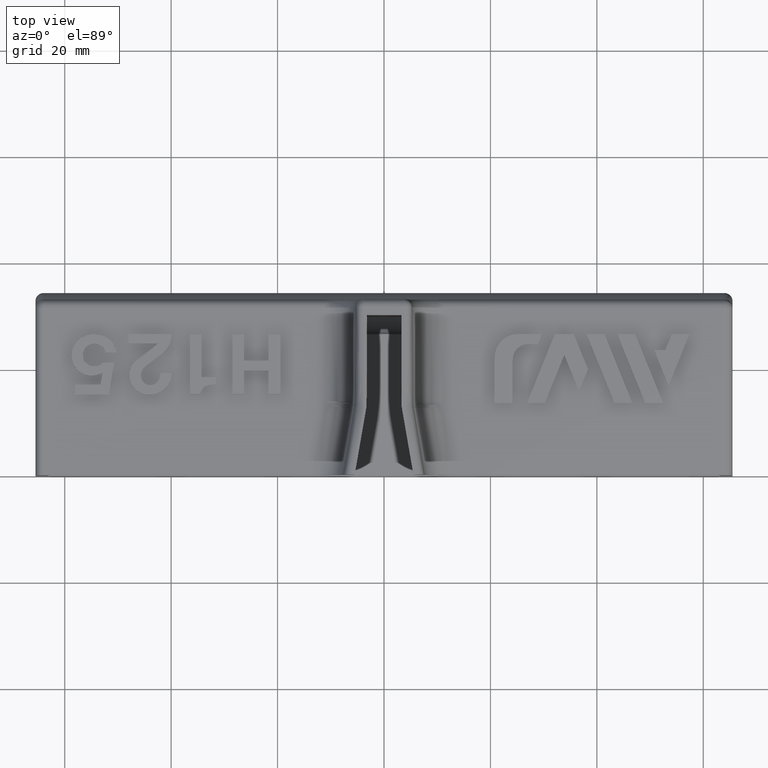
[diagram: clean part render]
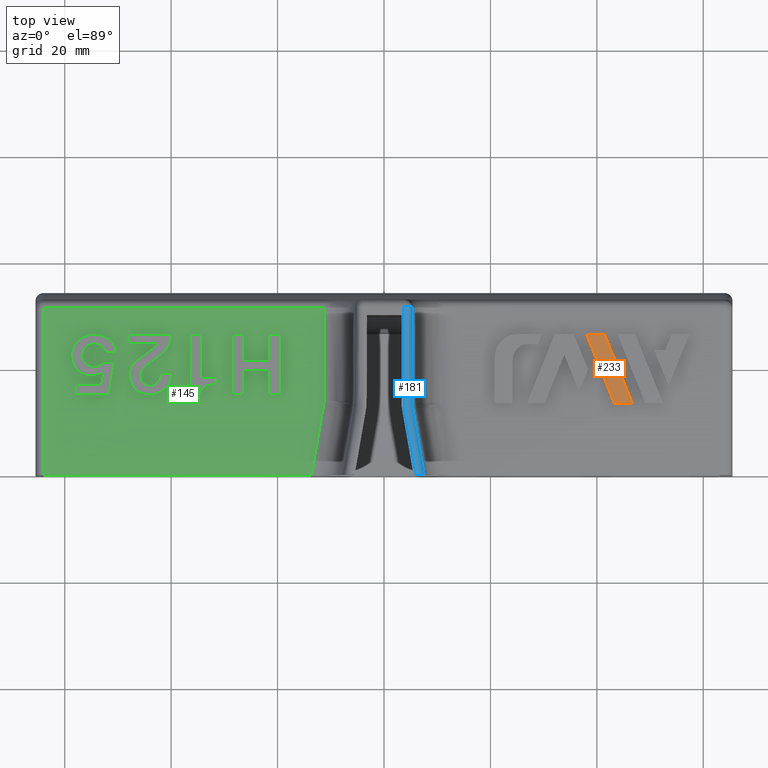
[diagram: same view with three faces highlighted in distinct colors, each labeled with its STEP entity id]
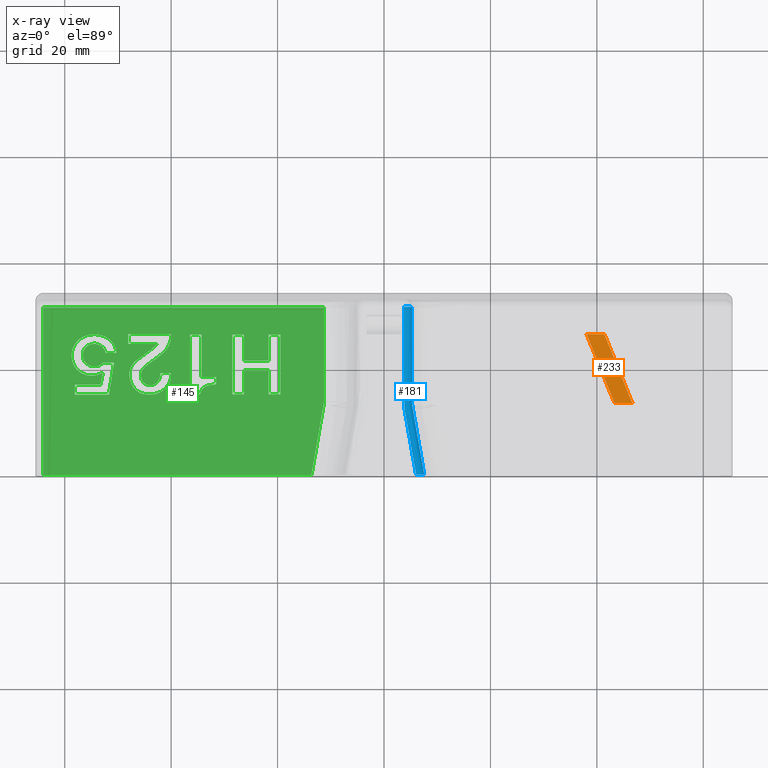
[diagram: x-ray of the same camera — body ghosted, the three highlighted faces saturated]
A machine part, top view with three faces highlighted in distinct colors.
The next image is the same camera in x-ray (body ghosted, the three faces saturated) — at least one of them is partly hidden behind the body in this view.
Their STEP definitions:

[orange] entity #233 — the highlighted planar face has unit normal (-0, 0, -1).
#233=ADVANCED_FACE('',(#494),#495,.F.);
#494=FACE_OUTER_BOUND('',#1603,.T.);
#495=PLANE('',#1604);
#1603=EDGE_LOOP('',(#2777,#2778,#2779,#2780));
#1604=AXIS2_PLACEMENT_3D('',#2781,#2782,#2783);
#2777=ORIENTED_EDGE('',*,*,#3166,.F.);
#2778=ORIENTED_EDGE('',*,*,#3175,.F.);
#2779=ORIENTED_EDGE('',*,*,#3172,.F.);
#2780=ORIENTED_EDGE('',*,*,#3169,.F.);
#2781=CARTESIAN_POINT('',(20.7878206641582,13.4986448545981,7.0005));
#2782=DIRECTION('',(-1.68724714822356E-31,1.71410341203709E-16,-1.0));
#2783=DIRECTION('',(-1.0,3.05640636956162E-16,2.21114680688731E-31));
#3166=EDGE_CURVE('',#3665,#3667,#3668,.T.);
#3169=EDGE_CURVE('',#3667,#3672,#3673,.T.);
#3172=EDGE_CURVE('',#3672,#3677,#3678,.T.);
#3175=EDGE_CURVE('',#3677,#3665,#3681,.T.);
#3665=VERTEX_POINT('',#5052);
#3667=VERTEX_POINT('',#5055);
#3668=LINE('',#5056,#5057);
#3672=VERTEX_POINT('',#5063);
#3673=LINE('',#5064,#5065);
#3677=VERTEX_POINT('',#5071);
#3678=LINE('',#5072,#5073);
#3681=LINE('',#5078,#5079);
#5052=CARTESIAN_POINT('',(41.4240970111796,26.4941301454018,7.0005));
#5055=CARTESIAN_POINT('',(46.6751758170018,13.4986448545981,7.0005));
#5056=CARTESIAN_POINT('',(41.4240970111796,26.4941301454018,7.0005));
#5057=VECTOR('',#5425,1000.0);
#5063=CARTESIAN_POINT('',(43.3170544880509,13.4986448545981,7.0005));
#5064=CARTESIAN_POINT('',(46.6751758170018,13.4986448545981,7.0005));
#5065=VECTOR('',#5428,1000.0);
#5071=CARTESIAN_POINT('',(38.0659756822287,26.4941301454018,7.0005));
#5072=CARTESIAN_POINT('',(43.3170544880509,13.4986448545981,7.0005));
#5073=VECTOR('',#5431,1000.0);
#5078=CARTESIAN_POINT('',(38.0659756822287,26.4941301454018,7.0005));
#5079=VECTOR('',#5434,1000.0);
#5425=DIRECTION('',(0.37464105840902,-0.927169929060563,-1.58926513894091E-16));
#5428=DIRECTION('',(-1.0,4.66969920222005E-16,1.68621565400355E-31));
#5431=DIRECTION('',(-0.374641058409019,0.927169929060563,1.58926513894091E-16));
#5434=DIRECTION('',(1.0,-4.66969920222005E-16,-1.68621565400355E-31));

[blue] entity #181 — the highlighted face is a freeform B-spline surface patch.
#181=ADVANCED_FACE('',(#387),#388,.T.);
#387=FACE_OUTER_BOUND('',#1171,.T.);
#388=(B_SPLINE_SURFACE(3,2,((#1173,#1174,#1175),(#1176,#1177,#1178),(#1179,#1180,#1181),(#1182,#1183,#1184),(#1185,#1186,#1187),(#1188,#1189,#1190),(#1191,#1192,#1193),(#1194,#1195,#1196),(#1197,#1198,#1199),(#1200,#1201,#1202),(#1203,#1204,#1205),(#1206,#1207,#1208),(#1209,#1210,#1211),(#1212,#1213,#1214),(#1215,#1216,#1217),(#1218,#1219,#1220),(#1221,#1222,#1223)),.UNSPECIFIED.,.F.,.F.,.F.)B_SPLINE_SURFACE_WITH_KNOTS((4,1,2,2,2,2,2,2,4),(3,3),(0.00879608113040688,0.0211577502210504,0.0212205431490077,0.0212833360769649,0.021785679500623,0.0227903663479393,0.0232299168436401,0.0232927097715974,0.0408747295996313),(0.0,1.0),.UNSPECIFIED.)RATIONAL_B_SPLINE_SURFACE(((1.0,0.707106781186547,1.0),(1.0,0.707106781186548,1.0),(1.0,0.707106781186606,1.0),(1.0,0.707106781186545,1.0),(1.0,0.707106781186545,1.0),(1.0,0.707106781186544,1.0),(1.0,0.707106781186544,1.0),(1.0,0.707106781186547,1.0),(1.0,0.707106781186547,1.0),(1.0,0.707106781186547,1.0),(1.0,0.707106781186547,1.0),(1.0,0.707106781186547,1.0),(1.0,0.707106781186548,1.0),(1.0,0.707106781186548,1.0),(1.0,0.707106781186547,1.0),(1.0,0.707106781186546,1.0),(1.0,0.707106781186546,1.0)))BOUNDED_SURFACE()REPRESENTATION_ITEM('')GEOMETRIC_REPRESENTATION_ITEM()SURFACE());
#1171=EDGE_LOOP('',(#2378,#2379,#2380,#2381));
#1173=CARTESIAN_POINT('',(7.56316124284262,-0.118589302377658,12.9999999999998));
#1174=CARTESIAN_POINT('',(7.56316124284251,-0.118589302377882,14.4999999999998));
#1175=CARTESIAN_POINT('',(6.08594961332428,-0.379061568878437,14.5));
#1176=CARTESIAN_POINT('',(6.84763413933632,3.93936655118135,12.9999999999858));
#1177=CARTESIAN_POINT('',(6.84763413932925,3.93936655116827,14.4999999999858));
#1178=CARTESIAN_POINT('',(5.37042250981624,3.67889428465863,14.5));
#1179=CARTESIAN_POINT('',(6.12847240999903,8.01793539213535,12.9999999999984));
#1180=CARTESIAN_POINT('',(6.12847240999735,8.01793539213566,14.4999999999983));
#1181=CARTESIAN_POINT('',(4.65126078048038,7.7574631256364,14.5));
#1182=CARTESIAN_POINT('',(5.40931068065736,12.096504233117,13.0));
#1183=CARTESIAN_POINT('',(5.40931068065738,12.096504233117,14.5));
#1184=CARTESIAN_POINT('',(3.93209905113905,11.8360319666166,14.5));
#1185=CARTESIAN_POINT('',(5.40204142898394,12.1377302079747,13.0));
#1186=CARTESIAN_POINT('',(5.40204142898394,12.1377302079747,14.5));
#1187=CARTESIAN_POINT('',(3.92482979946562,11.8772579414743,14.5));
#1188=CARTESIAN_POINT('',(5.39886437404737,12.1557420437247,13.0));
#1189=CARTESIAN_POINT('',(5.39886437404742,12.1557420437262,14.5));
#1190=CARTESIAN_POINT('',(3.92119395802114,11.8978707652702,14.5));
#1191=CARTESIAN_POINT('',(5.37099778403441,12.3171593063829,13.0));
#1192=CARTESIAN_POINT('',(5.3709977840341,12.3171593063708,14.5));
#1193=CARTESIAN_POINT('',(3.88914701587387,12.0835027236439,14.5));
#1194=CARTESIAN_POINT('',(5.34936018693053,12.4611969728094,13.0000000000006));
#1195=CARTESIAN_POINT('',(5.34936018694096,12.4611969728109,14.5000000000003));
#1196=CARTESIAN_POINT('',(3.86426436875966,12.2491423113834,14.5));
#1197=CARTESIAN_POINT('',(5.29393419033218,12.8943280620446,12.9999999999988));
#1198=CARTESIAN_POINT('',(5.29393419031134,12.8943280620416,14.4999999999994));
#1199=CARTESIAN_POINT('',(3.80052375612271,12.7472486632197,14.5));
#1200=CARTESIAN_POINT('',(5.26959773572732,13.1846924747639,12.9999999999997));
#1201=CARTESIAN_POINT('',(5.26959773570992,13.1846924747615,14.4999999999997));
#1202=CARTESIAN_POINT('',(3.77253751590679,13.0811603171372,14.5));
#1203=CARTESIAN_POINT('',(5.25288637629543,13.602952538197,13.0000000000001));
#1204=CARTESIAN_POINT('',(5.25288637630304,13.6029525381981,14.5000000000001));
#1205=CARTESIAN_POINT('',(3.75331923994191,13.5621647122355,14.5));
#1206=CARTESIAN_POINT('',(5.25023292249508,13.730354658492,12.9999999999996));
#1207=CARTESIAN_POINT('',(5.25023292249331,13.7303546584977,14.4999999999999));
#1208=CARTESIAN_POINT('',(3.75026786518251,13.708672154146,14.5));
#1209=CARTESIAN_POINT('',(5.24998349225646,13.8759588981508,13.0000000000001));
#1210=CARTESIAN_POINT('',(5.24998349225672,13.87595889815,14.5));
#1211=CARTESIAN_POINT('',(3.7499810158171,13.8761197118431,14.5));
#1212=CARTESIAN_POINT('',(5.25,13.8970507074756,13.0000000000001));
#1213=CARTESIAN_POINT('',(5.24999999999995,13.8970507074794,14.5));
#1214=CARTESIAN_POINT('',(3.74999999999999,13.8970507074807,14.5));
#1215=CARTESIAN_POINT('',(5.25,19.7786544544467,12.9999999999847));
#1216=CARTESIAN_POINT('',(5.25000000001525,19.7786544533793,14.4999999999899));
#1217=CARTESIAN_POINT('',(3.75000000000381,19.7786544530132,14.5));
#1218=CARTESIAN_POINT('',(5.25000000000003,25.6393272272107,13.0000000000051));
#1219=CARTESIAN_POINT('',(5.24999999993392,25.6393272272183,14.4999999999797));
#1220=CARTESIAN_POINT('',(3.74999999998221,25.639327227226,14.5));
#1221=CARTESIAN_POINT('',(5.25,31.5,13.0));
#1222=CARTESIAN_POINT('',(5.25000000000001,31.5,14.5));
#1223=CARTESIAN_POINT('',(3.75,31.5,14.5));
#2378=ORIENTED_EDGE('',*,*,#3075,.F.);
#2379=ORIENTED_EDGE('',*,*,#3015,.T.);
#2380=ORIENTED_EDGE('',*,*,#2958,.F.);
#2381=ORIENTED_EDGE('',*,*,#3076,.F.);
#2958=EDGE_CURVE('',#3347,#3348,#3349,.T.);
#3015=EDGE_CURVE('',#3373,#3348,#3451,.F.);
#3075=EDGE_CURVE('',#3373,#3533,#3534,.T.);
#3076=EDGE_CURVE('',#3533,#3347,#3535,.T.);
#3347=VERTEX_POINT('',#4101);
#3348=VERTEX_POINT('',#4102);
#3349=B_SPLINE_CURVE_WITH_KNOTS('',3,(#4103,#4104,#4105,#4106,#4107,#4108,#4109,#4110,#4111,#4112,#4113,#4114,#4115,#4116,#4117,#4118,#4119),.UNSPECIFIED.,.F.,.F.,(4,1,2,2,2,2,2,1,1,4),(0.0,0.00792231583258959,0.0118834737488844,0.0123786184884212,0.0128737632279581,0.0138640527070318,0.0143591974465686,0.0148543421861055,0.0158446316651792,0.0316892633303583),.UNSPECIFIED.);
#3373=VERTEX_POINT('',#4258);
#3451=CIRCLE('',#4487,1.5);
#3533=VERTEX_POINT('',#4810);
#3534=B_SPLINE_CURVE_WITH_KNOTS('',3,(#4811,#4812,#4813,#4814,#4815,#4816,#4817,#4818,#4819,#4820,#4821,#4822,#4823),.UNSPECIFIED.,.F.,.F.,(4,3,1,1,1,3,4),(0.0,0.00518421419875595,0.0108096352786937,0.0164350563586315,0.0220604774385694,0.0276858985185072,0.0316878832326826),.UNSPECIFIED.);
#3535=B_SPLINE_CURVE_WITH_KNOTS('',3,(#4824,#4825,#4826,#4827,#4828,#4829,#4830,#4831,#4832,#4833,#4834,#4835,#4836,#4837),.UNSPECIFIED.,.F.,.F.,(4,2,2,2,2,2,4),(0.0,0.000295168457652617,0.000590336915305234,0.000885505372957852,0.00118067383061047,0.00177101074591571,0.00236134766122094),.UNSPECIFIED.);
#4101=CARTESIAN_POINT('',(6.01911083138143,-6.93889390390723E-15,14.5));
#4102=CARTESIAN_POINT('',(3.75,31.5,14.5));
#4103=CARTESIAN_POINT('',(6.01911083138143,-6.93889390390723E-15,14.5));
#4104=CARTESIAN_POINT('',(5.56054559563775,2.60065268458186,14.5));
#4105=CARTESIAN_POINT('',(4.87269774202222,6.50163171145467,14.5));
#4106=CARTESIAN_POINT('',(4.1848498884067,10.4026107383274,14.5));
#4107=CARTESIAN_POINT('',(3.92690694330088,11.8654778734047,14.5));
#4108=CARTESIAN_POINT('',(3.89807618203087,12.0279990895719,14.5));
#4109=CARTESIAN_POINT('',(3.84980526029584,12.3541201574926,14.5));
#4110=CARTESIAN_POINT('',(3.82919114662232,12.5175851650829,14.5));
#4111=CARTESIAN_POINT('',(3.77789668957183,13.0091917528271,14.5));
#4112=CARTESIAN_POINT('',(3.7577505308533,13.3389509776113,14.5));
#4113=CARTESIAN_POINT('',(3.74888710162142,13.8341645615498,14.5));
#4114=CARTESIAN_POINT('',(3.75,13.9992831082187,14.5));
#4115=CARTESIAN_POINT('',(3.75,14.329485313724,14.5));
#4116=CARTESIAN_POINT('',(3.75,14.824788621982,14.5));
#4117=CARTESIAN_POINT('',(3.75,20.6033272183248,14.5));
#4118=CARTESIAN_POINT('',(3.75,26.216764711915,14.5));
#4119=CARTESIAN_POINT('',(3.75,31.5,14.5));
#4258=CARTESIAN_POINT('',(5.25,31.5,13.0));
#4487=AXIS2_PLACEMENT_3D('',#5235,#5236,#5237);
#4810=CARTESIAN_POINT('',(7.54225074921005,-1.04083408558608E-14,13.0));
#4811=CARTESIAN_POINT('',(5.25,31.5,13.0));
#4812=CARTESIAN_POINT('',(5.25,25.6249622117531,13.0));
#4813=CARTESIAN_POINT('',(5.25,19.7499244235061,13.0));
#4814=CARTESIAN_POINT('',(5.25,13.8748866352593,13.0));
#4815=CARTESIAN_POINT('',(5.25,13.7294425338559,13.0));
#4816=CARTESIAN_POINT('',(5.25634720316461,13.4385543310492,13.0));
#4817=CARTESIAN_POINT('',(5.2848914940124,13.0030526101796,13.0));
#4818=CARTESIAN_POINT('',(5.33240493528108,12.5692104749286,13.0));
#4819=CARTESIAN_POINT('',(5.37666636671682,12.2816393372819,13.0));
#4820=CARTESIAN_POINT('',(5.40192246987792,12.13840485859,13.0));
#4821=CARTESIAN_POINT('',(6.1153652296553,8.09226990572663,13.0));
#4822=CARTESIAN_POINT('',(6.82880798943268,4.04613495286331,13.0));
#4823=CARTESIAN_POINT('',(7.54225074921005,-1.25767452008319E-14,13.0));
#4824=CARTESIAN_POINT('',(7.54225074921005,-1.04083408558608E-14,13.0));
#4825=CARTESIAN_POINT('',(7.54225074921005,-1.04022289432836E-14,13.0998151072055));
#4826=CARTESIAN_POINT('',(7.53223497012553,3.96747707208249E-15,13.1979190371764));
#4827=CARTESIAN_POINT('',(7.49302433812296,3.98409261539632E-15,13.3908501880128));
#4828=CARTESIAN_POINT('',(7.46332582204162,3.99359913846888E-15,13.4867064595647));
#4829=CARTESIAN_POINT('',(7.38609203298865,4.0142149842287E-15,13.668921193031));
#4830=CARTESIAN_POINT('',(7.33887369676184,4.02528445181688E-15,13.7552626452724));
#4831=CARTESIAN_POINT('',(7.22742461437172,4.04892961248582E-15,13.9185192589214));
#4832=CARTESIAN_POINT('',(7.16280848481291,4.06155442772595E-15,13.9954658792802));
#4833=CARTESIAN_POINT('',(6.95152836551038,4.10008111231365E-15,14.2020941481618));
#4834=CARTESIAN_POINT('',(6.78180344348658,4.1276482759552E-15,14.3128502518332));
#4835=CARTESIAN_POINT('',(6.4170536854689,4.18138106070201E-15,14.4608737046118));
#4836=CARTESIAN_POINT('',(6.21865671729078,3.44500962890742E-15,14.5));
#4837=CARTESIAN_POINT('',(6.01911083138143,3.46944695195361E-15,14.5));
#5235=CARTESIAN_POINT('',(3.75,31.5,13.0));
#5236=DIRECTION('',(5.9524472320701E-17,1.0,6.18710768017223E-32));
#5237=DIRECTION('',(-1.0,5.9524472320701E-17,0.0));

[green] entity #145 — the highlighted planar face has unit normal (0, 0, 1).
#145=ADVANCED_FACE('',(#308,#309,#310,#311,#312),#313,.T.);
#308=FACE_OUTER_BOUND('',#851,.T.);
#309=FACE_BOUND('',#852,.T.);
#310=FACE_BOUND('',#853,.T.);
#311=FACE_BOUND('',#854,.T.);
#312=FACE_BOUND('',#855,.T.);
#313=PLANE('',#856);
#851=EDGE_LOOP('',(#1957,#1958,#1959,#1960,#1961));
#852=EDGE_LOOP('',(#1962,#1963,#1964,#1965,#1966,#1967,#1968,#1969,#1970,#1971,#1972,#1973));
#853=EDGE_LOOP('',(#1974,#1975,#1976,#1977,#1978,#1979,#1980));
#854=EDGE_LOOP('',(#1981,#1982,#1983,#1984,#1985,#1986));
#855=EDGE_LOOP('',(#1987,#1988,#1989,#1990,#1991,#1992,#1993,#1994,#1995,#1996));
#856=AXIS2_PLACEMENT_3D('',#1997,#1998,#1999);
#1957=ORIENTED_EDGE('',*,*,#2982,.T.);
#1958=ORIENTED_EDGE('',*,*,#2983,.T.);
#1959=ORIENTED_EDGE('',*,*,#2984,.T.);
#1960=ORIENTED_EDGE('',*,*,#2985,.T.);
#1961=ORIENTED_EDGE('',*,*,#2986,.F.);
#1962=ORIENTED_EDGE('',*,*,#2927,.T.);
#1963=ORIENTED_EDGE('',*,*,#2950,.T.);
#1964=ORIENTED_EDGE('',*,*,#2948,.T.);
#1965=ORIENTED_EDGE('',*,*,#2946,.T.);
#1966=ORIENTED_EDGE('',*,*,#2944,.T.);
#1967=ORIENTED_EDGE('',*,*,#2942,.T.);
#1968=ORIENTED_EDGE('',*,*,#2940,.T.);
#1969=ORIENTED_EDGE('',*,*,#2938,.T.);
#1970=ORIENTED_EDGE('',*,*,#2936,.T.);
#1971=ORIENTED_EDGE('',*,*,#2934,.T.);
#1972=ORIENTED_EDGE('',*,*,#2932,.T.);
#1973=ORIENTED_EDGE('',*,*,#2930,.T.);
#1974=ORIENTED_EDGE('',*,*,#2987,.T.);
#1975=ORIENTED_EDGE('',*,*,#2912,.T.);
#1976=ORIENTED_EDGE('',*,*,#2908,.T.);
#1977=ORIENTED_EDGE('',*,*,#2988,.T.);
#1978=ORIENTED_EDGE('',*,*,#2989,.T.);
#1979=ORIENTED_EDGE('',*,*,#2990,.T.);
#1980=ORIENTED_EDGE('',*,*,#2991,.T.);
#1981=ORIENTED_EDGE('',*,*,#2903,.T.);
#1982=ORIENTED_EDGE('',*,*,#2992,.T.);
#1983=ORIENTED_EDGE('',*,*,#2993,.T.);
#1984=ORIENTED_EDGE('',*,*,#2994,.T.);
#1985=ORIENTED_EDGE('',*,*,#2995,.T.);
#1986=ORIENTED_EDGE('',*,*,#2906,.T.);
#1987=ORIENTED_EDGE('',*,*,#2996,.T.);
#1988=ORIENTED_EDGE('',*,*,#2893,.T.);
#1989=ORIENTED_EDGE('',*,*,#2997,.T.);
#1990=ORIENTED_EDGE('',*,*,#2998,.T.);
#1991=ORIENTED_EDGE('',*,*,#2999,.T.);
#1992=ORIENTED_EDGE('',*,*,#3000,.T.);
#1993=ORIENTED_EDGE('',*,*,#3001,.T.);
#1994=ORIENTED_EDGE('',*,*,#3002,.T.);
#1995=ORIENTED_EDGE('',*,*,#3003,.T.);
#1996=ORIENTED_EDGE('',*,*,#3004,.T.);
#1997=CARTESIAN_POINT('',(-65.5,1.04083408558608E-14,6.5));
#1998=DIRECTION('',(1.43492962746861E-48,6.12323399573677E-17,1.0));
#1999=DIRECTION('',(-1.0,1.22464679914735E-16,-7.4987989133093E-33));
#2893=EDGE_CURVE('',#3233,#3234,#3235,.T.);
#2903=EDGE_CURVE('',#3253,#3254,#3255,.T.);
#2906=EDGE_CURVE('',#3258,#3253,#3259,.T.);
#2908=EDGE_CURVE('',#3261,#3262,#3263,.T.);
#2912=EDGE_CURVE('',#3269,#3261,#3270,.T.);
#2927=EDGE_CURVE('',#3298,#3299,#3300,.T.);
#2930=EDGE_CURVE('',#3303,#3298,#3304,.T.);
#2932=EDGE_CURVE('',#3306,#3303,#3307,.T.);
#2934=EDGE_CURVE('',#3309,#3306,#3310,.T.);
#2936=EDGE_CURVE('',#3312,#3309,#3313,.T.);
#2938=EDGE_CURVE('',#3315,#3312,#3316,.T.);
#2940=EDGE_CURVE('',#3318,#3315,#3319,.T.);
#2942=EDGE_CURVE('',#3321,#3318,#3322,.T.);
#2944=EDGE_CURVE('',#3324,#3321,#3325,.T.);
#2946=EDGE_CURVE('',#3327,#3324,#3328,.T.);
#2948=EDGE_CURVE('',#3330,#3327,#3331,.T.);
#2950=EDGE_CURVE('',#3299,#3330,#3333,.T.);
#2982=EDGE_CURVE('',#3392,#3393,#3394,.T.);
#2983=EDGE_CURVE('',#3393,#3395,#3396,.F.);
#2984=EDGE_CURVE('',#3395,#3397,#3398,.F.);
#2985=EDGE_CURVE('',#3397,#3399,#3400,.T.);
#2986=EDGE_CURVE('',#3392,#3399,#3401,.F.);
#2987=EDGE_CURVE('',#3402,#3269,#3403,.T.);
#2988=EDGE_CURVE('',#3262,#3404,#3405,.T.);
#2989=EDGE_CURVE('',#3404,#3406,#3407,.T.);
#2990=EDGE_CURVE('',#3406,#3408,#3409,.T.);
#2991=EDGE_CURVE('',#3408,#3402,#3410,.T.);
#2992=EDGE_CURVE('',#3254,#3411,#3412,.T.);
#2993=EDGE_CURVE('',#3411,#3413,#3414,.T.);
#2994=EDGE_CURVE('',#3413,#3415,#3416,.T.);
#2995=EDGE_CURVE('',#3415,#3258,#3417,.T.);
#2996=EDGE_CURVE('',#3418,#3233,#3419,.T.);
#2997=EDGE_CURVE('',#3234,#3420,#3421,.T.);
#2998=EDGE_CURVE('',#3420,#3422,#3423,.T.);
#2999=EDGE_CURVE('',#3422,#3424,#3425,.T.);
#3000=EDGE_CURVE('',#3424,#3426,#3427,.T.);
#3001=EDGE_CURVE('',#3426,#3428,#3429,.T.);
#3002=EDGE_CURVE('',#3428,#3430,#3431,.T.);
#3003=EDGE_CURVE('',#3430,#3432,#3433,.T.);
#3004=EDGE_CURVE('',#3432,#3418,#3434,.T.);
#3233=VERTEX_POINT('',#3761);
#3234=VERTEX_POINT('',#3762);
#3235=B_SPLINE_CURVE_WITH_KNOTS('',2,(#3763,#3764,#3765),.UNSPECIFIED.,.F.,.F.,(3,3),(0.0,1.0),.UNSPECIFIED.);
#3253=VERTEX_POINT('',#3819);
#3254=VERTEX_POINT('',#3820);
#3255=B_SPLINE_CURVE_WITH_KNOTS('',2,(#3821,#3822,#3823),.UNSPECIFIED.,.F.,.F.,(3,3),(15.0,16.0),.UNSPECIFIED.);
#3258=VERTEX_POINT('',#3828);
#3259=B_SPLINE_CURVE_WITH_KNOTS('',2,(#3829,#3830,#3831,#3832,#3833,#3834,#3835,#3836,#3837,#3838,#3839,#3840,#3841),.UNSPECIFIED.,.F.,.F.,(3,2,2,2,2,2,3),(9.0,10.0,11.0,12.0,13.0,14.0,15.0),.UNSPECIFIED.);
#3261=VERTEX_POINT('',#3844);
#3262=VERTEX_POINT('',#3845);
#3263=B_SPLINE_CURVE_WITH_KNOTS('',2,(#3846,#3847,#3848,#3849,#3850),.UNSPECIFIED.,.F.,.F.,(3,2,3),(1.0,2.0,3.0),.UNSPECIFIED.);
#3269=VERTEX_POINT('',#3862);
#3270=B_SPLINE_CURVE_WITH_KNOTS('',2,(#3863,#3864,#3865),.UNSPECIFIED.,.F.,.F.,(3,3),(0.0,1.0),.UNSPECIFIED.);
#3298=VERTEX_POINT('',#3920);
#3299=VERTEX_POINT('',#3921);
#3300=B_SPLINE_CURVE_WITH_KNOTS('',2,(#3922,#3923,#3924),.UNSPECIFIED.,.F.,.F.,(3,3),(11.0,12.0),.UNSPECIFIED.);
#3303=VERTEX_POINT('',#3929);
#3304=B_SPLINE_CURVE_WITH_KNOTS('',2,(#3930,#3931,#3932),.UNSPECIFIED.,.F.,.F.,(3,3),(10.0,11.0),.UNSPECIFIED.);
#3306=VERTEX_POINT('',#3935);
#3307=B_SPLINE_CURVE_WITH_KNOTS('',2,(#3936,#3937,#3938),.UNSPECIFIED.,.F.,.F.,(3,3),(9.0,10.0),.UNSPECIFIED.);
#3309=VERTEX_POINT('',#3941);
#3310=B_SPLINE_CURVE_WITH_KNOTS('',2,(#3942,#3943,#3944),.UNSPECIFIED.,.F.,.F.,(3,3),(8.0,9.0),.UNSPECIFIED.);
#3312=VERTEX_POINT('',#3947);
#3313=B_SPLINE_CURVE_WITH_KNOTS('',2,(#3948,#3949,#3950),.UNSPECIFIED.,.F.,.F.,(3,3),(7.0,8.0),.UNSPECIFIED.);
#3315=VERTEX_POINT('',#3953);
#3316=B_SPLINE_CURVE_WITH_KNOTS('',2,(#3954,#3955,#3956),.UNSPECIFIED.,.F.,.F.,(3,3),(6.0,7.0),.UNSPECIFIED.);
#3318=VERTEX_POINT('',#3959);
#3319=B_SPLINE_CURVE_WITH_KNOTS('',2,(#3960,#3961,#3962),.UNSPECIFIED.,.F.,.F.,(3,3),(5.0,6.0),.UNSPECIFIED.);
#3321=VERTEX_POINT('',#3965);
#3322=B_SPLINE_CURVE_WITH_KNOTS('',2,(#3966,#3967,#3968),.UNSPECIFIED.,.F.,.F.,(3,3),(4.0,5.0),.UNSPECIFIED.);
#3324=VERTEX_POINT('',#3971);
#3325=B_SPLINE_CURVE_WITH_KNOTS('',2,(#3972,#3973,#3974),.UNSPECIFIED.,.F.,.F.,(3,3),(3.0,4.0),.UNSPECIFIED.);
#3327=VERTEX_POINT('',#3977);
#3328=B_SPLINE_CURVE_WITH_KNOTS('',2,(#3978,#3979,#3980),.UNSPECIFIED.,.F.,.F.,(3,3),(2.0,3.0),.UNSPECIFIED.);
#3330=VERTEX_POINT('',#3983);
#3331=B_SPLINE_CURVE_WITH_KNOTS('',2,(#3984,#3985,#3986),.UNSPECIFIED.,.F.,.F.,(3,3),(1.0,2.0),.UNSPECIFIED.);
#3333=B_SPLINE_CURVE_WITH_KNOTS('',2,(#3989,#3990,#3991),.UNSPECIFIED.,.F.,.F.,(3,3),(0.0,1.0),.UNSPECIFIED.);
#3392=VERTEX_POINT('',#4314);
#3393=VERTEX_POINT('',#4315);
#3394=B_SPLINE_CURVE_WITH_KNOTS('',1,(#4316,#4317),.UNSPECIFIED.,.F.,.F.,(2,2),(0.0,0.92157468243047),.UNSPECIFIED.);
#3395=VERTEX_POINT('',#4318);
#3396=LINE('',#4319,#4320);
#3397=VERTEX_POINT('',#4321);
#3398=LINE('',#4322,#4323);
#3399=VERTEX_POINT('',#4324);
#3400=LINE('',#4325,#4326);
#3401=B_SPLINE_CURVE_WITH_KNOTS('',3,(#4327,#4328,#4329,#4330,#4331,#4332,#4333,#4334,#4335,#4336),.UNSPECIFIED.,.F.,.F.,(4,3,1,1,1,4),(0.0379210014763876,0.166666666666667,0.333333333333334,0.500000000000001,0.666666666666668,0.83203125),.UNSPECIFIED.);
#3402=VERTEX_POINT('',#4337);
#3403=B_SPLINE_CURVE_WITH_KNOTS('',2,(#4338,#4339,#4340),.UNSPECIFIED.,.F.,.F.,(3,3),(7.0,8.0),.UNSPECIFIED.);
#3404=VERTEX_POINT('',#4341);
#3405=B_SPLINE_CURVE_WITH_KNOTS('',2,(#4342,#4343,#4344),.UNSPECIFIED.,.F.,.F.,(3,3),(3.0,4.0),.UNSPECIFIED.);
#3406=VERTEX_POINT('',#4345);
#3407=B_SPLINE_CURVE_WITH_KNOTS('',2,(#4346,#4347,#4348),.UNSPECIFIED.,.F.,.F.,(3,3),(4.0,5.0),.UNSPECIFIED.);
#3408=VERTEX_POINT('',#4349);
#3409=B_SPLINE_CURVE_WITH_KNOTS('',2,(#4350,#4351,#4352),.UNSPECIFIED.,.F.,.F.,(3,3),(5.0,6.0),.UNSPECIFIED.);
#3410=B_SPLINE_CURVE_WITH_KNOTS('',2,(#4353,#4354,#4355),.UNSPECIFIED.,.F.,.F.,(3,3),(6.0,7.0),.UNSPECIFIED.);
#3411=VERTEX_POINT('',#4356);
#3412=B_SPLINE_CURVE_WITH_KNOTS('',2,(#4357,#4358,#4359,#4360,#4361,#4362,#4363,#4364,#4365,#4366,#4367,#4368,#4369),.UNSPECIFIED.,.F.,.F.,(3,2,2,2,2,2,3),(0.0,1.0,2.0,3.0,4.0,5.0,6.0),.UNSPECIFIED.);
#3413=VERTEX_POINT('',#4370);
#3414=B_SPLINE_CURVE_WITH_KNOTS('',2,(#4371,#4372,#4373),.UNSPECIFIED.,.F.,.F.,(3,3),(6.0,7.0),.UNSPECIFIED.);
#3415=VERTEX_POINT('',#4374);
#3416=B_SPLINE_CURVE_WITH_KNOTS('',2,(#4375,#4376,#4377),.UNSPECIFIED.,.F.,.F.,(3,3),(7.0,8.0),.UNSPECIFIED.);
#3417=B_SPLINE_CURVE_WITH_KNOTS('',2,(#4378,#4379,#4380),.UNSPECIFIED.,.F.,.F.,(3,3),(8.0,9.0),.UNSPECIFIED.);
#3418=VERTEX_POINT('',#4381);
#3419=B_SPLINE_CURVE_WITH_KNOTS('',2,(#4382,#4383,#4384,#4385,#4386,#4387,#4388,#4389,#4390,#4391,#4392,#4393,#4394),.UNSPECIFIED.,.F.,.F.,(3,2,2,2,2,2,3),(14.0,15.0,16.0,17.0,18.0,19.0,20.0),.UNSPECIFIED.);
#3420=VERTEX_POINT('',#4395);
#3421=B_SPLINE_CURVE_WITH_KNOTS('',2,(#4396,#4397,#4398),.UNSPECIFIED.,.F.,.F.,(3,3),(1.0,2.0),.UNSPECIFIED.);
#3422=VERTEX_POINT('',#4399);
#3423=B_SPLINE_CURVE_WITH_KNOTS('',2,(#4400,#4401,#4402,#4403,#4404,#4405,#4406,#4407,#4408,#4409,#4410,#4411,#4412),.UNSPECIFIED.,.F.,.F.,(3,2,2,2,2,2,3),(2.0,3.0,4.0,5.0,6.0,7.0,8.0),.UNSPECIFIED.);
#3424=VERTEX_POINT('',#4413);
#3425=B_SPLINE_CURVE_WITH_KNOTS('',2,(#4414,#4415,#4416),.UNSPECIFIED.,.F.,.F.,(3,3),(8.0,9.0),.UNSPECIFIED.);
#3426=VERTEX_POINT('',#4417);
#3427=B_SPLINE_CURVE_WITH_KNOTS('',2,(#4418,#4419,#4420),.UNSPECIFIED.,.F.,.F.,(3,3),(9.0,10.0),.UNSPECIFIED.);
#3428=VERTEX_POINT('',#4421);
#3429=B_SPLINE_CURVE_WITH_KNOTS('',2,(#4422,#4423,#4424),.UNSPECIFIED.,.F.,.F.,(3,3),(10.0,11.0),.UNSPECIFIED.);
#3430=VERTEX_POINT('',#4425);
#3431=B_SPLINE_CURVE_WITH_KNOTS('',2,(#4426,#4427,#4428),.UNSPECIFIED.,.F.,.F.,(3,3),(11.0,12.0),.UNSPECIFIED.);
#3432=VERTEX_POINT('',#4429);
#3433=B_SPLINE_CURVE_WITH_KNOTS('',2,(#4430,#4431,#4432),.UNSPECIFIED.,.F.,.F.,(3,3),(12.0,13.0),.UNSPECIFIED.);
#3434=B_SPLINE_CURVE_WITH_KNOTS('',2,(#4433,#4434,#4435),.UNSPECIFIED.,.F.,.F.,(3,3),(13.0,14.0),.UNSPECIFIED.);
#3761=CARTESIAN_POINT('',(-51.3835903738116,25.3213340732302,6.5));
#3762=CARTESIAN_POINT('',(-50.2919034090909,22.9767045454545,6.5));
#3763=CARTESIAN_POINT('',(-51.3835903738116,25.3213340732302,6.5));
#3764=CARTESIAN_POINT('',(-50.4009943181818,24.3948863636364,6.5));
#3765=CARTESIAN_POINT('',(-50.2919034090909,22.9767045454545,6.5));
#3819=CARTESIAN_POINT('',(-42.0090909090909,19.1636363636364,6.5));
#3820=CARTESIAN_POINT('',(-39.9363636363636,19.1636363636364,6.5));
#3821=CARTESIAN_POINT('',(-42.0090909090909,19.1636363636364,6.5));
#3822=CARTESIAN_POINT('',(-40.9727272727272,19.1636363636364,6.5));
#3823=CARTESIAN_POINT('',(-39.9363636363636,19.1636363636364,6.5));
#3828=CARTESIAN_POINT('',(-39.9363636363636,26.4727272727273,6.5));
#3829=CARTESIAN_POINT('',(-39.9363636363636,26.4727272727273,6.5));
#3830=CARTESIAN_POINT('',(-39.8818181818182,23.9636363636364,6.5));
#3831=CARTESIAN_POINT('',(-42.4508118654718,22.1713151889943,6.5));
#3832=CARTESIAN_POINT('',(-43.4,21.509090909091,6.5));
#3833=CARTESIAN_POINT('',(-44.3505098817183,20.8487366754761,6.5));
#3834=CARTESIAN_POINT('',(-45.9909090909091,19.7090909090909,6.5));
#3835=CARTESIAN_POINT('',(-45.6007568066451,18.1839501615136,6.5));
#3836=CARTESIAN_POINT('',(-45.3909090909091,17.3636363636364,6.5));
#3837=CARTESIAN_POINT('',(-44.631771321462,17.0262417994377,6.5));
#3838=CARTESIAN_POINT('',(-43.9181818181818,16.7090909090909,6.5));
#3839=CARTESIAN_POINT('',(-43.1500033795201,17.0815410611694,6.5));
#3840=CARTESIAN_POINT('',(-42.1181818181818,17.5818181818182,6.5));
#3841=CARTESIAN_POINT('',(-42.0090909090909,19.1636363636364,6.5));
#3844=CARTESIAN_POINT('',(-31.5454545454546,17.0909090909091,6.5));
#3845=CARTESIAN_POINT('',(-34.6,15.1818181818182,6.5));
#3846=CARTESIAN_POINT('',(-31.5454545454546,17.0909090909091,6.5));
#3847=CARTESIAN_POINT('',(-32.9636363636364,16.9818181818182,6.5));
#3848=CARTESIAN_POINT('',(-33.5698877948249,16.6665674376002,6.5));
#3849=CARTESIAN_POINT('',(-34.3272727272727,16.2727272727273,6.5));
#3850=CARTESIAN_POINT('',(-34.6,15.1818181818182,6.5));
#3862=CARTESIAN_POINT('',(-31.5454545454546,18.4545454545455,6.5));
#3863=CARTESIAN_POINT('',(-31.5454545454546,18.4545454545455,6.5));
#3864=CARTESIAN_POINT('',(-31.5454545454546,17.7727272727273,6.5));
#3865=CARTESIAN_POINT('',(-31.5454545454546,17.0909090909091,6.5));
#3920=CARTESIAN_POINT('',(-19.5,26.4181818181818,6.5));
#3921=CARTESIAN_POINT('',(-19.5,15.1818181818182,6.5));
#3922=CARTESIAN_POINT('',(-19.5,26.4181818181818,6.5));
#3923=CARTESIAN_POINT('',(-19.5,20.8,6.5));
#3924=CARTESIAN_POINT('',(-19.5,15.1818181818182,6.5));
#3929=CARTESIAN_POINT('',(-21.6818181818182,26.4181818181818,6.5));
#3930=CARTESIAN_POINT('',(-21.6818181818182,26.4181818181818,6.5));
#3931=CARTESIAN_POINT('',(-20.5909090909091,26.4181818181818,6.5));
#3932=CARTESIAN_POINT('',(-19.5,26.4181818181818,6.5));
#3935=CARTESIAN_POINT('',(-21.6818181818182,21.5636363636364,6.5));
#3936=CARTESIAN_POINT('',(-21.6818181818182,21.5636363636364,6.5));
#3937=CARTESIAN_POINT('',(-21.6818181818182,23.9909090909091,6.5));
#3938=CARTESIAN_POINT('',(-21.6818181818182,26.4181818181818,6.5));
#3941=CARTESIAN_POINT('',(-26.3181818181818,21.5636363636364,6.5));
#3942=CARTESIAN_POINT('',(-26.3181818181818,21.5636363636364,6.5));
#3943=CARTESIAN_POINT('',(-24.0,21.5636363636364,6.5));
#3944=CARTESIAN_POINT('',(-21.6818181818182,21.5636363636364,6.5));
#3947=CARTESIAN_POINT('',(-26.3181818181818,26.4181818181818,6.5));
#3948=CARTESIAN_POINT('',(-26.3181818181818,26.4181818181818,6.5));
#3949=CARTESIAN_POINT('',(-26.3181818181818,23.9909090909091,6.5));
#3950=CARTESIAN_POINT('',(-26.3181818181818,21.5636363636364,6.5));
#3953=CARTESIAN_POINT('',(-28.5,26.4181818181818,6.5));
#3954=CARTESIAN_POINT('',(-28.5,26.4181818181818,6.5));
#3955=CARTESIAN_POINT('',(-27.4090909090909,26.4181818181818,6.5));
#3956=CARTESIAN_POINT('',(-26.3181818181818,26.4181818181818,6.5));
#3959=CARTESIAN_POINT('',(-28.5,15.1818181818182,6.5));
#3960=CARTESIAN_POINT('',(-28.5,15.1818181818182,6.5));
#3961=CARTESIAN_POINT('',(-28.5,20.8,6.5));
#3962=CARTESIAN_POINT('',(-28.5,26.4181818181818,6.5));
#3965=CARTESIAN_POINT('',(-26.3181818181818,15.1818181818182,6.5));
#3966=CARTESIAN_POINT('',(-26.3181818181818,15.1818181818182,6.5));
#3967=CARTESIAN_POINT('',(-27.4090909090909,15.1818181818182,6.5));
#3968=CARTESIAN_POINT('',(-28.5,15.1818181818182,6.5));
#3971=CARTESIAN_POINT('',(-26.3181818181818,19.6545454545455,6.5));
#3972=CARTESIAN_POINT('',(-26.3181818181818,19.6545454545455,6.5));
#3973=CARTESIAN_POINT('',(-26.3181818181818,17.4181818181818,6.5));
#3974=CARTESIAN_POINT('',(-26.3181818181818,15.1818181818182,6.5));
#3977=CARTESIAN_POINT('',(-21.6818181818182,19.6545454545455,6.5));
#3978=CARTESIAN_POINT('',(-21.6818181818182,19.6545454545455,6.5));
#3979=CARTESIAN_POINT('',(-24.0,19.6545454545455,6.5));
#3980=CARTESIAN_POINT('',(-26.3181818181818,19.6545454545455,6.5));
#3983=CARTESIAN_POINT('',(-21.6818181818182,15.1818181818182,6.5));
#3984=CARTESIAN_POINT('',(-21.6818181818182,15.1818181818182,6.5));
#3985=CARTESIAN_POINT('',(-21.6818181818182,17.4181818181818,6.5));
#3986=CARTESIAN_POINT('',(-21.6818181818182,19.6545454545455,6.5));
#3989=CARTESIAN_POINT('',(-19.5,15.1818181818182,6.5));
#3990=CARTESIAN_POINT('',(-20.5909090909091,15.1818181818182,6.5));
#3991=CARTESIAN_POINT('',(-21.6818181818182,15.1818181818182,6.5));
#4314=CARTESIAN_POINT('',(-11.25,13.8735234171017,6.5));
#4315=CARTESIAN_POINT('',(-11.25,31.5,6.5));
#4316=CARTESIAN_POINT('',(-11.25,13.8735234171017,6.5));
#4317=CARTESIAN_POINT('',(-11.25,31.5,6.5));
#4318=CARTESIAN_POINT('',(-64.0,31.5,6.5));
#4319=CARTESIAN_POINT('',(-65.5,31.5,6.5));
#4320=VECTOR('',#5227,1000.0);
#4321=CARTESIAN_POINT('',(-64.0,1.04083408558608E-14,6.5));
#4322=CARTESIAN_POINT('',(-64.0,1.04083408558608E-14,6.5));
#4323=VECTOR('',#5228,1000.0);
#4324=CARTESIAN_POINT('',(-13.6348104205245,3.46944695195361E-15,6.5));
#4325=CARTESIAN_POINT('',(-65.5,1.04083408558608E-14,6.5));
#4326=VECTOR('',#5229,1000.0);
#4327=CARTESIAN_POINT('',(-13.6348104205246,-1.17093834628434E-14,6.5));
#4328=CARTESIAN_POINT('',(-12.8601299430001,4.39343130819723,6.5));
#4329=CARTESIAN_POINT('',(-12.0854494654756,8.78686261639446,6.5));
#4330=CARTESIAN_POINT('',(-11.3107689879512,13.1802939245917,6.5));
#4331=CARTESIAN_POINT('',(-11.3006689516526,13.2375740768292,6.5));
#4332=CARTESIAN_POINT('',(-11.2829608575211,13.3526220090009,6.5));
#4333=CARTESIAN_POINT('',(-11.2639568982257,13.5261530515284,6.5));
#4334=CARTESIAN_POINT('',(-11.2525685300171,13.6998941384175,6.5));
#4335=CARTESIAN_POINT('',(-11.2500199117509,13.8158136678226,6.5));
#4336=CARTESIAN_POINT('',(-11.2500002324331,13.8735234171024,6.5));
#4337=CARTESIAN_POINT('',(-34.2727272727273,18.4545454545455,6.5));
#4338=CARTESIAN_POINT('',(-34.2727272727273,18.4545454545455,6.5));
#4339=CARTESIAN_POINT('',(-32.9090909090909,18.4545454545455,6.5));
#4340=CARTESIAN_POINT('',(-31.5454545454546,18.4545454545455,6.5));
#4341=CARTESIAN_POINT('',(-36.4545454545455,15.1818181818182,6.5));
#4342=CARTESIAN_POINT('',(-34.6,15.1818181818182,6.5));
#4343=CARTESIAN_POINT('',(-35.5272727272727,15.1818181818182,6.5));
#4344=CARTESIAN_POINT('',(-36.4545454545455,15.1818181818182,6.5));
#4345=CARTESIAN_POINT('',(-36.4545454545455,26.4181818181818,6.5));
#4346=CARTESIAN_POINT('',(-36.4545454545455,15.1818181818182,6.5));
#4347=CARTESIAN_POINT('',(-36.4545454545455,20.8,6.5));
#4348=CARTESIAN_POINT('',(-36.4545454545455,26.4181818181818,6.5));
#4349=CARTESIAN_POINT('',(-34.2727272727273,26.4181818181818,6.5));
#4350=CARTESIAN_POINT('',(-36.4545454545455,26.4181818181818,6.5));
#4351=CARTESIAN_POINT('',(-35.3636363636364,26.4181818181818,6.5));
#4352=CARTESIAN_POINT('',(-34.2727272727273,26.4181818181818,6.5));
#4353=CARTESIAN_POINT('',(-34.2727272727273,26.4181818181818,6.5));
#4354=CARTESIAN_POINT('',(-34.2727272727273,22.4363636363637,6.5));
#4355=CARTESIAN_POINT('',(-34.2727272727273,18.4545454545455,6.5));
#4356=CARTESIAN_POINT('',(-42.6090909090909,24.6727272727273,6.5));
#4357=CARTESIAN_POINT('',(-39.9363636363636,19.1636363636364,6.5));
#4358=CARTESIAN_POINT('',(-39.9363636363636,17.309090909091,6.5));
#4359=CARTESIAN_POINT('',(-41.2059561128527,16.1805642633229,6.5));
#4360=CARTESIAN_POINT('',(-42.3909090909091,15.1272727272728,6.5));
#4361=CARTESIAN_POINT('',(-44.0818181818182,15.1272727272728,6.5));
#4362=CARTESIAN_POINT('',(-46.8636363636364,15.1272727272728,6.5));
#4363=CARTESIAN_POINT('',(-47.6818181818182,17.7454545454545,6.5));
#4364=CARTESIAN_POINT('',(-48.5,20.3636363636364,6.5));
#4365=CARTESIAN_POINT('',(-45.8349992219612,22.1750040799597,6.5));
#4366=CARTESIAN_POINT('',(-45.0090909090909,22.7363636363637,6.5));
#4367=CARTESIAN_POINT('',(-44.1971898831404,23.317860317112,6.5));
#4368=CARTESIAN_POINT('',(-42.9909090909091,24.1818181818182,6.5));
#4369=CARTESIAN_POINT('',(-42.6090909090909,24.6727272727273,6.5));
#4370=CARTESIAN_POINT('',(-48.0636363636364,24.6727272727273,6.5));
#4371=CARTESIAN_POINT('',(-42.6090909090909,24.6727272727273,6.5));
#4372=CARTESIAN_POINT('',(-45.3363636363636,24.6727272727273,6.5));
#4373=CARTESIAN_POINT('',(-48.0636363636364,24.6727272727273,6.5));
#4374=CARTESIAN_POINT('',(-48.0636363636364,26.4727272727273,6.5));
#4375=CARTESIAN_POINT('',(-48.0636363636364,24.6727272727273,6.5));
#4376=CARTESIAN_POINT('',(-48.0636363636364,25.5727272727273,6.5));
#4377=CARTESIAN_POINT('',(-48.0636363636364,26.4727272727273,6.5));
#4378=CARTESIAN_POINT('',(-48.0636363636364,26.4727272727273,6.5));
#4379=CARTESIAN_POINT('',(-44.0,26.4727272727273,6.5));
#4380=CARTESIAN_POINT('',(-39.9363636363636,26.4727272727273,6.5));
#4381=CARTESIAN_POINT('',(-52.8555397727273,19.2130681818182,6.5));
#4382=CARTESIAN_POINT('',(-52.8555397727273,19.2130681818182,6.5));
#4383=CARTESIAN_POINT('',(-55.0373579545455,18.1767045454546,6.5));
#4384=CARTESIAN_POINT('',(-56.8325846057429,19.1671744219773,6.5));
#4385=CARTESIAN_POINT('',(-58.2009943181818,19.9221590909091,6.5));
#4386=CARTESIAN_POINT('',(-58.5828125,21.5039772727273,6.5));
#4387=CARTESIAN_POINT('',(-58.9646306818182,23.0857954545455,6.5));
#4388=CARTESIAN_POINT('',(-58.1956022890076,24.4463841495181,6.5));
#4389=CARTESIAN_POINT('',(-57.5464488636364,25.5948863636364,6.5));
#4390=CARTESIAN_POINT('',(-56.2356843758028,26.136289086872,6.5));
#4391=CARTESIAN_POINT('',(-55.0373579545455,26.63125,6.5));
#4392=CARTESIAN_POINT('',(-53.7269055364487,26.4215776131045,6.5));
#4393=CARTESIAN_POINT('',(-52.3100852272727,26.1948863636364,6.5));
#4394=CARTESIAN_POINT('',(-51.3835903738116,25.3213340732302,6.5));
#4395=CARTESIAN_POINT('',(-52.3100852272727,22.9767045454545,6.5));
#4396=CARTESIAN_POINT('',(-50.2919034090909,22.9767045454545,6.5));
#4397=CARTESIAN_POINT('',(-51.3009943181818,22.9767045454545,6.5));
#4398=CARTESIAN_POINT('',(-52.3100852272727,22.9767045454545,6.5));
#4399=CARTESIAN_POINT('',(-52.8009943181818,21.1221590909091,6.5));
#4400=CARTESIAN_POINT('',(-52.3100852272727,22.9767045454545,6.5));
#4401=CARTESIAN_POINT('',(-52.4737215909091,23.8494318181818,6.5));
#4402=CARTESIAN_POINT('',(-53.2449428160359,24.3281208544674,6.5));
#4403=CARTESIAN_POINT('',(-54.0555397727273,24.83125,6.5));
#4404=CARTESIAN_POINT('',(-54.878988855833,24.6351906944986,6.5));
#4405=CARTESIAN_POINT('',(-56.3464488636364,24.2857954545455,6.5));
#4406=CARTESIAN_POINT('',(-56.5864122559488,22.9260028981086,6.5));
#4407=CARTESIAN_POINT('',(-56.8373579545455,21.5039772727273,6.5));
#4408=CARTESIAN_POINT('',(-55.5779996657754,20.7483622994652,6.5));
#4409=CARTESIAN_POINT('',(-54.9282670454546,20.3585227272727,6.5));
#4410=CARTESIAN_POINT('',(-54.1100852272727,20.4676136363636,6.5));
#4411=CARTESIAN_POINT('',(-53.2919034090909,20.5767045454546,6.5));
#4412=CARTESIAN_POINT('',(-52.8009943181818,21.1221590909091,6.5));
#4413=CARTESIAN_POINT('',(-50.7282670454545,21.1221590909091,6.5));
#4414=CARTESIAN_POINT('',(-52.8009943181818,21.1221590909091,6.5));
#4415=CARTESIAN_POINT('',(-51.7646306818182,21.1221590909091,6.5));
#4416=CARTESIAN_POINT('',(-50.7282670454545,21.1221590909091,6.5));
#4417=CARTESIAN_POINT('',(-51.7100852272727,15.1221590909091,6.5));
#4418=CARTESIAN_POINT('',(-50.7282670454545,21.1221590909091,6.5));
#4419=CARTESIAN_POINT('',(-51.2191761363636,18.1221590909091,6.5));
#4420=CARTESIAN_POINT('',(-51.7100852272727,15.1221590909091,6.5));
#4421=CARTESIAN_POINT('',(-58.0919034090909,15.1221590909091,6.5));
#4422=CARTESIAN_POINT('',(-51.7100852272727,15.1221590909091,6.5));
#4423=CARTESIAN_POINT('',(-54.9009943181818,15.1221590909091,6.5));
#4424=CARTESIAN_POINT('',(-58.0919034090909,15.1221590909091,6.5));
#4425=CARTESIAN_POINT('',(-58.0919034090909,16.9767045454545,6.5));
#4426=CARTESIAN_POINT('',(-58.0919034090909,15.1221590909091,6.5));
#4427=CARTESIAN_POINT('',(-58.0919034090909,16.0494318181819,6.5));
#4428=CARTESIAN_POINT('',(-58.0919034090909,16.9767045454545,6.5));
#4429=CARTESIAN_POINT('',(-53.2919034090909,16.9767045454545,6.5));
#4430=CARTESIAN_POINT('',(-58.0919034090909,16.9767045454545,6.5));
#4431=CARTESIAN_POINT('',(-55.6919034090909,16.9767045454545,6.5));
#4432=CARTESIAN_POINT('',(-53.2919034090909,16.9767045454545,6.5));
#4433=CARTESIAN_POINT('',(-53.2919034090909,16.9767045454545,6.5));
#4434=CARTESIAN_POINT('',(-53.0737215909091,18.0948863636364,6.5));
#4435=CARTESIAN_POINT('',(-52.8555397727273,19.2130681818182,6.5));
#5227=DIRECTION('',(1.0,-1.22464679914735E-16,7.49879891330929E-33));
#5228=DIRECTION('',(1.22464679914735E-16,1.0,-6.12323399573677E-17));
#5229=DIRECTION('',(1.0,-1.22464679914735E-16,7.49879891330929E-33));